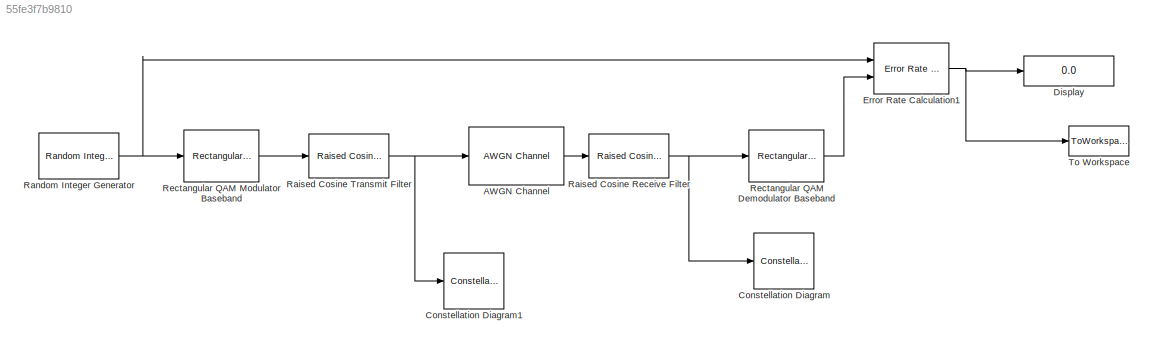
MODEL slx_55fe3f7b9810
KIND model
CONFIG AbsTol = auto
CONFIG EnableMultiTasking = off
CONFIG FixedStep = auto
CONFIG MaxStep = auto
CONFIG MinStep = auto
CONFIG RelTol = 1e-3
CONFIG SampleTimeConstraint = Unconstrained
CONFIG Solver = VariableStepAuto
CONFIG SolverName = VariableStepAuto
CONFIG StartTime = 0.0
CONFIG StopTime = 10.0
BLOCK [Reference] AWGN Channel  REF=commchan3/AWGN
Channel
  Ports = [1, 1]
  SourceBlock = commchan3/AWGN\nChannel
  SourceProductBaseCode = CM
  SourceProductName = Communications Toolbox
  SourceType = AWGN Channel
  UserDataPersistent = on
BLOCK [ConstellationDiagram] Constellation Diagram
  Ports = [1]
  ScopeSpecificationString = comm.scopes.ConstellationDiagramBlockCfg('CurrentConfiguration', extmgr.ConfigurationSet(extmgr.Configuration('Core','General UI',true),extmgr.Configuration('Core','Source UI',true),extmgr.Configuration('Sources','WiredSimulink',true),extmgr.Configuration('Visuals','Constellation',true,'LineProperties',struct('DisplayName','','Color',[1 1 0.0666666666666667],'LineStyle','none','LineWidth',0.5,'Mar...<+673ch>
BLOCK [ConstellationDiagram] Constellation Diagram1
  Ports = [1]
  ScopeSpecificationString = comm.scopes.ConstellationDiagramBlockCfg('CurrentConfiguration', extmgr.ConfigurationSet(extmgr.Configuration('Core','General UI',true),extmgr.Configuration('Core','Source UI',true),extmgr.Configuration('Sources','WiredSimulink',true),extmgr.Configuration('Visuals','Constellation',true,'LineProperties',struct('DisplayName','','Color',[1 1 0.0666666666666667],'LineStyle','none','LineWidth',0.5,'Mar...<+673ch>
BLOCK [Display] Display
  Decimation = 1
  Ports = [1]
BLOCK [Reference] Error Rate Calculation1  REF=commsink2/Error Rate
Calculation
  Ports = [2, 1]
  SourceBlock = commsink2/Error Rate\nCalculation
  SourceProductBaseCode = CM
  SourceProductName = Communications Toolbox
  SourceType = Error Rate Calculation
BLOCK [Reference] Raised Cosine Receive Filter  REF=commfilt2/Raised Cosine
Receive Filter
  Ports = [1, 1]
  SourceBlock = commfilt2/Raised Cosine\nReceive Filter
  SourceProductBaseCode = CM
  SourceProductName = Communications Toolbox
  SourceType = Raised Cosine Receive Filter
  UserDataPersistent = on
BLOCK [Reference] Raised Cosine Transmit Filter  REF=commfilt2/Raised Cosine
Transmit Filter
  Ports = [1, 1]
  SourceBlock = commfilt2/Raised Cosine\nTransmit Filter
  SourceProductBaseCode = CM
  SourceProductName = Communications Toolbox
  SourceType = Raised Cosine Transmit Filter
  UserDataPersistent = on
BLOCK [Reference] Random Integer Generator  REF=commrandsrc3/Random Integer
Generator
  Ports = [0, 1]
  SourceBlock = commrandsrc3/Random Integer\nGenerator
  SourceProductBaseCode = CM
  SourceProductName = Communications Toolbox
  SourceType = Random Integer Generator
BLOCK [Reference] Rectangular QAM Demodulator Baseband  REF=commdigbbndam3/Rectangular QAM
Demodulator
Baseband
  Ports = [1, 1]
  SourceBlock = commdigbbndam3/Rectangular QAM\nDemodulator\nBaseband
  SourceProductBaseCode = CM
  SourceProductName = Communications Toolbox
  SourceType = Rectangular QAM Demodulator Baseband
BLOCK [Reference] Rectangular QAM Modulator Baseband  REF=commdigbbndam3/Rectangular QAM
Modulator
Baseband
  Ports = [1, 1]
  SourceBlock = commdigbbndam3/Rectangular QAM\nModulator\nBaseband
  SourceProductBaseCode = CM
  SourceProductName = Communications Toolbox
  SourceType = Rectangular QAM Modulator Baseband
BLOCK [ToWorkspace] To Workspace
  FixptAsFi = on
  MaxDataPoints = 64
  Ports = [1]
  SampleTime = -1
  Save2DSignal = 2-D array (concatenate along first dimension)
  VariableName = ber
LINE AWGN Channel:1 -> Raised Cosine Receive Filter:1
NET Error Rate Calculation1:1 -> Display:1, To Workspace:1
NET Raised Cosine Receive Filter:1 -> Constellation Diagram:1, Rectangular QAM Demodulator Baseband:1
NET Raised Cosine Transmit Filter:1 -> AWGN Channel:1, Constellation Diagram1:1
NET Random Integer Generator:1 -> Error Rate Calculation1:1, Rectangular QAM Modulator Baseband:1
LINE Rectangular QAM Demodulator Baseband:1 -> Error Rate Calculation1:2
LINE Rectangular QAM Modulator Baseband:1 -> Raised Cosine Transmit Filter:1
note: NET lines group one-source signal fan-out (src -> all destinations, sorted); 1:1 wires keep LINE
